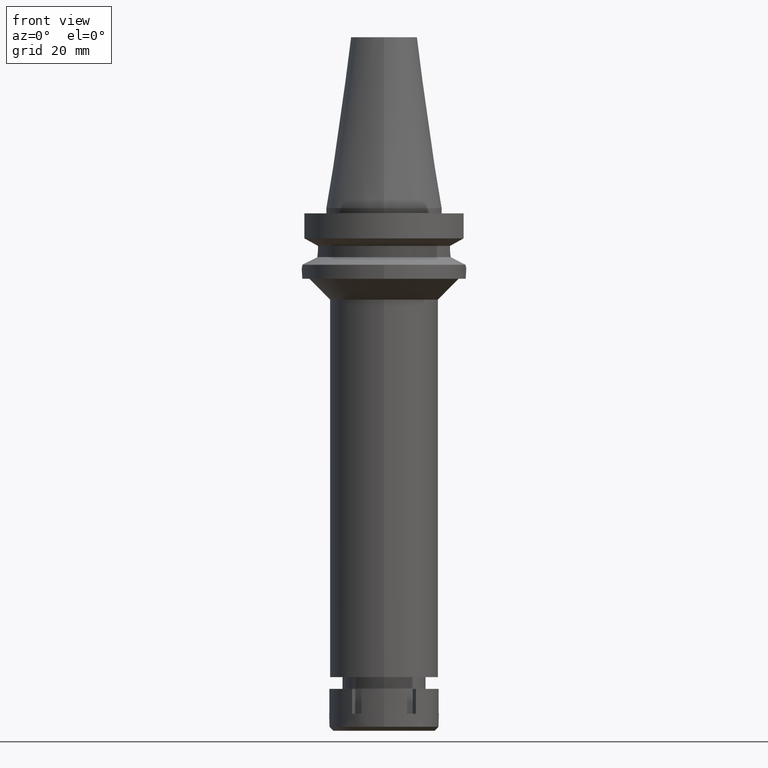
[diagram: clean part render]
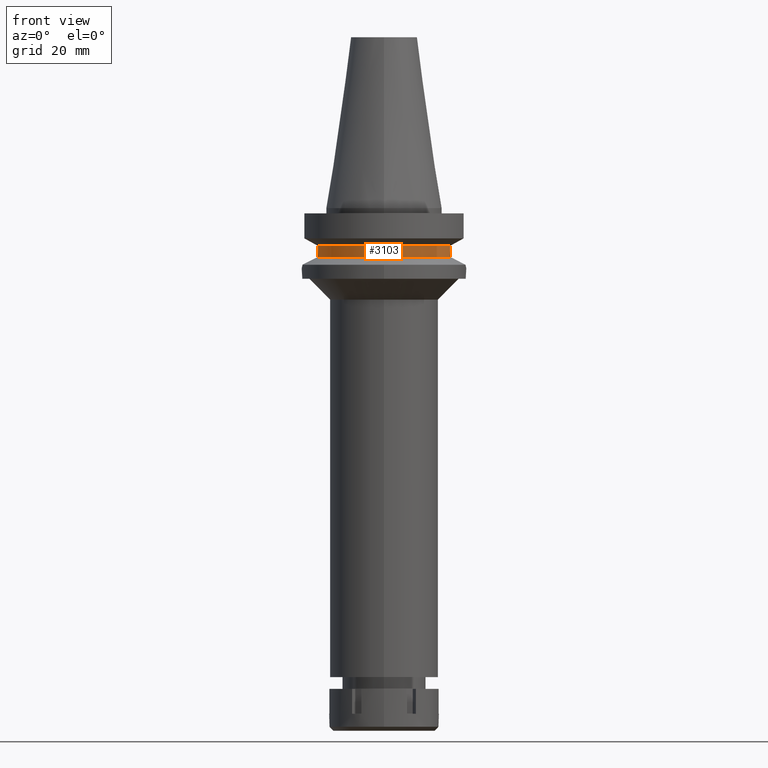
[diagram: same view with one face highlighted and labeled with its STEP entity id]
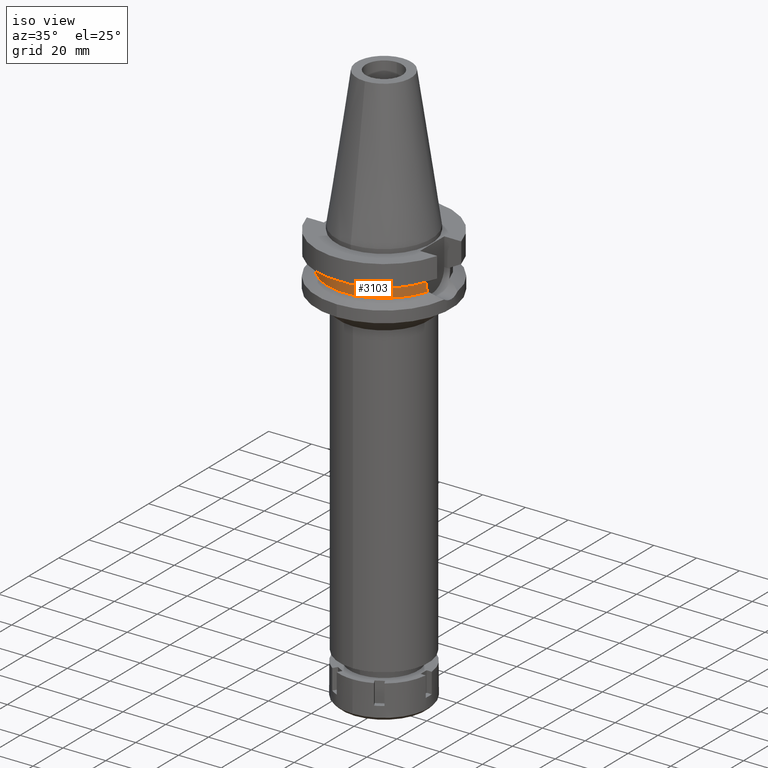
[diagram: same view with one face highlighted and labeled with its STEP entity id]
A machine part, front view. The second image highlights one B-rep face of the part: STEP entity #3103.
A second angle (iso view) of the same face is appended — the face is thin or edge-on in the first view.
In plain terms, the highlighted cylindrical surface (partial cylindrical patch) has radius 26.5 mm, axis along (0, 0, -1).
Its self-contained STEP definition (entity closure, byte-faithful):
#93 = CARTESIAN_POINT ( 'NONE',  ( 25.27269574104416705, -7.971769475027993046, -16.08146184949839608 ) ) ;
#124 = CIRCLE ( 'NONE', #507, 26.50000000000000711 ) ;
#127 = CARTESIAN_POINT ( 'NONE',  ( 25.31205759391835386, -7.845621557332120410, -16.75326793493535504 ) ) ;
#326 = AXIS2_PLACEMENT_3D ( 'NONE', #1690, #869, #1079 ) ;
#360 = CARTESIAN_POINT ( 'NONE',  ( -25.35411833098771339, -7.708843546317146078, -17.27003765535713953 ) ) ;
#388 = CARTESIAN_POINT ( 'NONE',  ( 25.24772266957998923, -8.049999999999998934, -15.27000127550211950 ) ) ;
#404 = VERTEX_POINT ( 'NONE', #1206 ) ;
#507 = AXIS2_PLACEMENT_3D ( 'NONE', #1262, #1490, #2579 ) ;
#688 = CARTESIAN_POINT ( 'NONE',  ( 25.30215616128704426, -7.877576232118708610, -16.61085564857137342 ) ) ;
#718 = CARTESIAN_POINT ( 'NONE',  ( 25.53175183775000079, -7.097862220092999941, -18.74774300138999905 ) ) ;
#741 = CIRCLE ( 'NONE', #1390, 26.50000000000000000 ) ;
#743 = EDGE_CURVE ( 'NONE', #3612, #404, #741, .T. ) ;
#869 = DIRECTION ( 'NONE',  ( 0.0000000000000000000, 0.0000000000000000000, -1.000000000000000000 ) ) ;
#891 = EDGE_CURVE ( 'NONE', #3336, #2906, #2550, .T. ) ;
#937 = CARTESIAN_POINT ( 'NONE',  ( -25.33292553851982021, -7.777985707516910097, -17.02558215515376716 ) ) ;
#957 = CARTESIAN_POINT ( 'NONE',  ( 25.24772266958000344, -8.050000000000000711, -14.45225699861000024 ) ) ;
#1070 = DIRECTION ( 'NONE',  ( 0.0000000000000000000, -1.000000000000000000, 0.0000000000000000000 ) ) ;
#1079 = DIRECTION ( 'NONE',  ( 0.0000000000000000000, -1.000000000000000000, 0.0000000000000000000 ) ) ;
#1133 = ORIENTED_EDGE ( 'NONE', *, *, #891, .F. ) ;
#1206 = CARTESIAN_POINT ( 'NONE',  ( 25.53175183775000079, -7.097862220092999941, -18.74774300138999905 ) ) ;
#1223 = CARTESIAN_POINT ( 'NONE',  ( -25.39164478449575668, -7.584820969897874576, -17.65194245035706544 ) ) ;
#1258 = ORIENTED_EDGE ( 'NONE', *, *, #1359, .T. ) ;
#1261 = CARTESIAN_POINT ( 'NONE',  ( 25.43788636139897008, -7.435506143601751106, -18.11669712818196487 ) ) ;
#1262 = CARTESIAN_POINT ( 'NONE',  ( 0.0000000000000000000, 1.065333950388000029E-14, -14.45225699861000024 ) ) ;
#1287 = DIRECTION ( 'NONE',  ( -2.936548755724931564E-06, 9.210088831163782246E-06, 0.9999999999532754869 ) ) ;
#1359 = EDGE_CURVE ( 'NONE', #3336, #1779, #124, .T. ) ;
#1379 = CARTESIAN_POINT ( 'NONE',  ( 0.0000000000000000000, 0.0000000000000000000, -18.74774300138999905 ) ) ;
#1390 = AXIS2_PLACEMENT_3D ( 'NONE', #1379, #2756, #1070 ) ;
#1433 = CARTESIAN_POINT ( 'NONE',  ( 25.24772266958000344, -8.050000000000000711, -14.94999999999999929 ) ) ;
#1485 = EDGE_LOOP ( 'NONE', ( #1952, #2455, #2770, #1133, #1258, #2052 ) ) ;
#1490 = DIRECTION ( 'NONE',  ( 0.0000000000000000000, 0.0000000000000000000, -1.000000000000000000 ) ) ;
#1527 = CARTESIAN_POINT ( 'NONE',  ( 25.32121872273810936, -7.815971166073770959, -16.87703378351424632 ) ) ;
#1543 = EDGE_CURVE ( 'NONE', #2021, #1779, #3266, .T. ) ;
#1690 = CARTESIAN_POINT ( 'NONE',  ( 0.0000000000000000000, 2.183177848839999781E-14, 78.27000000000001023 ) ) ;
#1767 = CARTESIAN_POINT ( 'NONE',  ( 25.24772216353000331, -8.050001587143000847, -14.45224487143999959 ) ) ;
#1779 = VERTEX_POINT ( 'NONE', #1968 ) ;
#1780 = CARTESIAN_POINT ( 'NONE',  ( 25.24772266958000344, -8.050000000000000711, -14.94999999999999929 ) ) ;
#1804 = CARTESIAN_POINT ( 'NONE',  ( 25.31652055493196940, -7.831184758221566788, -16.81426458565759319 ) ) ;
#1814 = CARTESIAN_POINT ( 'NONE',  ( -25.24772266957999634, -8.049999999999979394, -15.58999073685843051 ) ) ;
#1833 = CARTESIAN_POINT ( 'NONE',  ( 25.31954463780457942, -7.821394976199189664, -16.85491936549159320 ) ) ;
#1880 = CARTESIAN_POINT ( 'NONE',  ( -25.32419265906723282, -7.806329682138570369, -16.91574545218071890 ) ) ;
#1952 = ORIENTED_EDGE ( 'NONE', *, *, #1976, .F. ) ;
#1967 = CARTESIAN_POINT ( 'NONE',  ( -25.53175183775000079, -7.097862220092999941, -18.74774300138999905 ) ) ;
#1968 = CARTESIAN_POINT ( 'NONE',  ( -25.24772413111999825, -8.049995416064998466, -14.45229202584999939 ) ) ;
#1976 = EDGE_CURVE ( 'NONE', #3612, #2021, #3085, .T. ) ;
#2021 = VERTEX_POINT ( 'NONE', #2922 ) ;
#2042 = CARTESIAN_POINT ( 'NONE',  ( -25.32844325893299242, -7.792538688758869014, -16.96970524096792232 ) ) ;
#2052 = ORIENTED_EDGE ( 'NONE', *, *, #1543, .F. ) ;
#2086 = CARTESIAN_POINT ( 'NONE',  ( 25.28049982587671707, -7.946985634408026300, -16.24435369768701065 ) ) ;
#2097 = CARTESIAN_POINT ( 'NONE',  ( -25.27269246206562769, -7.973290322421786591, -16.24535685341015068 ) ) ;
#2238 = CYLINDRICAL_SURFACE ( 'NONE', #326, 26.50000000000000000 ) ;
#2252 = CARTESIAN_POINT ( 'NONE',  ( -25.44392473217403960, -7.408251102518685016, -18.11706870841285877 ) ) ;
#2346 = VECTOR ( 'NONE', #1287, 1000.000000000000000 ) ;
#2439 = FACE_OUTER_BOUND ( 'NONE', #1485, .T. ) ;
#2455 = ORIENTED_EDGE ( 'NONE', *, *, #743, .T. ) ;
#2483 = B_SPLINE_CURVE_WITH_KNOTS ( 'NONE', 3,
 ( #1780, #388, #2637, #93, #2086, #3224, #688, #127, #1804, #1833, #1527, #2621, #1261, #718 ),
 .UNSPECIFIED., .F., .F.,
 ( 4, 2, 2, 1, 1, 2, 2, 4 ),
 ( 0.0000000000000000000, 0.2499999999999946709, 0.3749999999999906741, 0.4374999999999886757, 0.4687499999999876765, 0.4843749999999870104, 0.4999999999999863443, 1.000000000000000000 ),
 .UNSPECIFIED. ) ;
#2542 = CARTESIAN_POINT ( 'NONE',  ( -25.37572817765897071, -7.637723572224845547, -17.49814693645483743 ) ) ;
#2550 = LINE ( 'NONE', #1767, #2648 ) ;
#2568 = DIRECTION ( 'NONE',  ( 1.016655027073999510E-06, 3.188601129083999011E-06, -0.9999999999943997020 ) ) ;
#2575 = CARTESIAN_POINT ( 'NONE',  ( -25.34387967354808424, -7.742345491372923050, -17.15662736175767833 ) ) ;
#2579 = DIRECTION ( 'NONE',  ( 0.9527442516822307583, -0.3037735849057093818, 0.0000000000000000000 ) ) ;
#2621 = CARTESIAN_POINT ( 'NONE',  ( 25.36818304347313813, -7.663708172145562436, -17.48836484274151104 ) ) ;
#2637 = CARTESIAN_POINT ( 'NONE',  ( 25.25396593744603990, -8.030896968459813934, -15.59377931111265170 ) ) ;
#2648 = VECTOR ( 'NONE', #2568, 999.9999999999998863 ) ;
#2714 = CARTESIAN_POINT ( 'NONE',  ( -25.24772266958000344, -8.050000000000000711, -14.94999999999999929 ) ) ;
#2756 = DIRECTION ( 'NONE',  ( 0.0000000000000000000, 0.0000000000000000000, 1.000000000000000000 ) ) ;
#2770 = ORIENTED_EDGE ( 'NONE', *, *, #3392, .F. ) ;
#2906 = VERTEX_POINT ( 'NONE', #1433 ) ;
#2922 = CARTESIAN_POINT ( 'NONE',  ( -25.24772266958000344, -8.050000000000000711, -14.94999999999999929 ) ) ;
#3085 = B_SPLINE_CURVE_WITH_KNOTS ( 'NONE', 3,
 ( #3420, #3154, #2252, #1223, #2542, #360, #2575, #937, #2042, #3170, #1880, #2097, #1814, #3528 ),
 .UNSPECIFIED., .F., .F.,
 ( 4, 2, 2, 1, 1, 2, 2, 4 ),
 ( 0.0000000000000000000, 0.2500000000000225930, 0.3750000000000351386, 0.4375000000000401901, 0.4687500000000426326, 0.4843750000000427436, 0.5000000000000427436, 1.000000000000000000 ),
 .UNSPECIFIED. ) ;
#3103 = ADVANCED_FACE ( 'NONE', ( #2439 ), #2238, .T. ) ;
#3154 = CARTESIAN_POINT ( 'NONE',  ( -25.48481820018342248, -7.266687417052686726, -18.43221401828698802 ) ) ;
#3170 = CARTESIAN_POINT ( 'NONE',  ( -25.32550226136643445, -7.802082245155482099, -16.93251888163180396 ) ) ;
#3224 = CARTESIAN_POINT ( 'NONE',  ( 25.29454717857531065, -7.902012029793996639, -16.48868902740021269 ) ) ;
#3266 = LINE ( 'NONE', #2714, #2346 ) ;
#3336 = VERTEX_POINT ( 'NONE', #957 ) ;
#3392 = EDGE_CURVE ( 'NONE', #2906, #404, #2483, .T. ) ;
#3420 = CARTESIAN_POINT ( 'NONE',  ( -25.53175183775000079, -7.097862220092999941, -18.74774300138999905 ) ) ;
#3528 = CARTESIAN_POINT ( 'NONE',  ( -25.24772266958000344, -8.050000000000000711, -14.94999999999999929 ) ) ;
#3612 = VERTEX_POINT ( 'NONE', #1967 ) ;